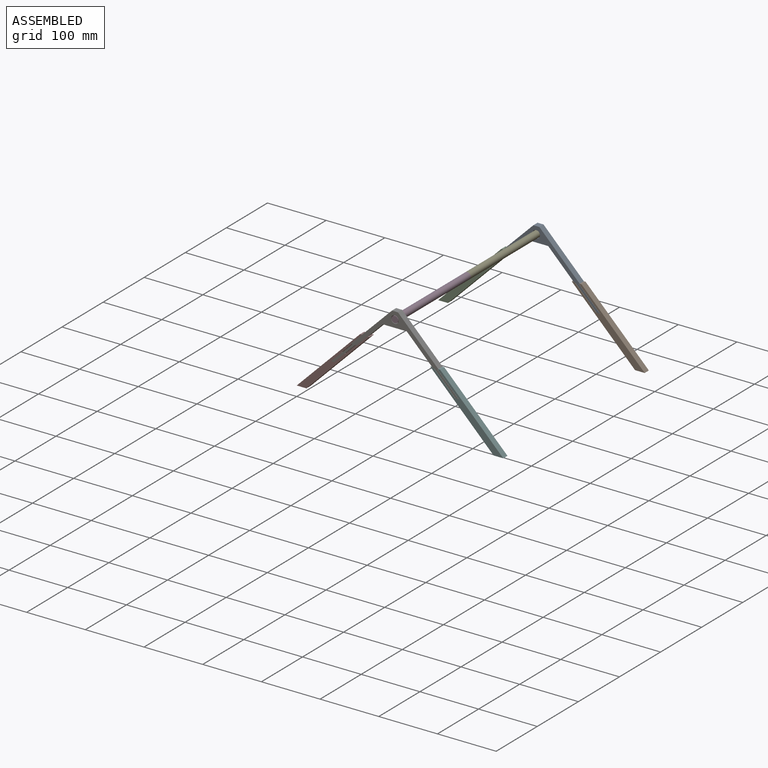
[diagram: assembled view]
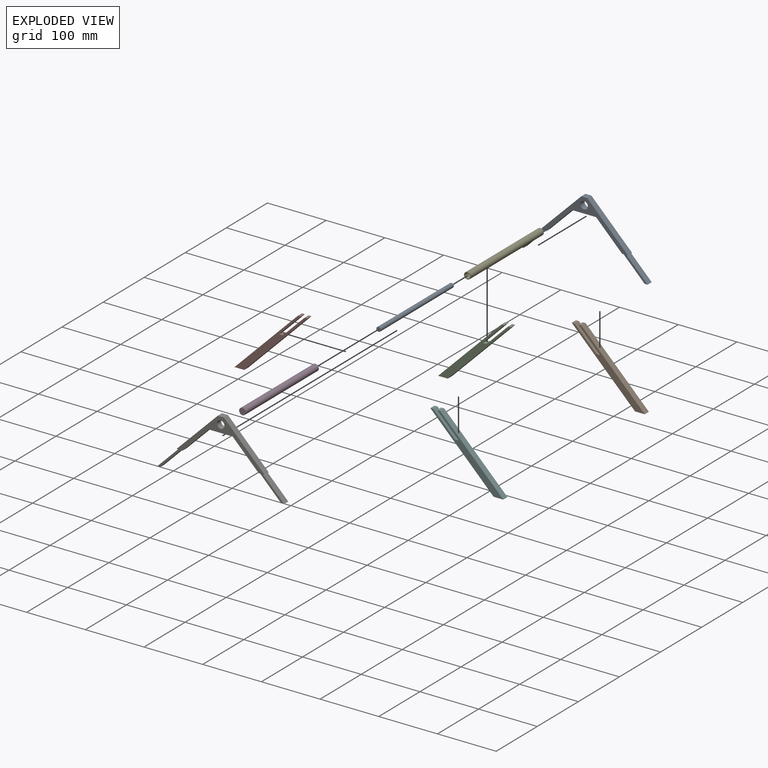
[diagram: exploded view]
GUIDED TOUR — MATED ASSEMBLY (Onshape document 0e04e7c41436a34d3ba47d7c, AutoMate assembly 0e04e7c41436a34d3ba47d7c_139859a5a8a082f7fe30dfd3_d05e98aa26e6f94b2ca812b6_default)

This assembly has 9 components, labeled P0..P8 below (a component is one placed occurrence of a part; the same part can appear more than once), held together by 6 mates. A mate is a constraint between two components; its type names the relative motion it leaves free:
  FASTENED — locks the two components together rigidly (no relative motion).
Axis/direction vectors are unit vectors and 'through' points are millimeter coordinates, both in the assembly's world frame.

MATES
  1. FASTENED "Fastened 7": P1 <-> P8, direction (0.000, 0.000, 1.000) through (-94.93, 260.28, 23.37) mm
  2. FASTENED "Fastened 4": P4 <-> P0, direction (0.000, -1.000, 0.000) through (-200.51, 176.46, 116.72) mm
  3. FASTENED "Fastened 8": P8 <-> P4, direction (0.000, 1.000, 0.000) through (-200.51, 265.36, 116.72) mm
  4. FASTENED "Fastened 2": P5 <-> P6, direction (0.000, 0.000, 1.000) through (-94.93, -83.82, 23.37) mm
  5. FASTENED "Fastened 5": P6 <-> P3, direction (0.000, 1.000, 0.000) through (-200.51, -88.90, 116.72) mm
  6. FASTENED "Fastened 3": P0 <-> P3, direction (0.000, -1.000, 0.000) through (-200.51, -1.34, 116.72) mm

ASSEMBLY ORDER
  1. P4 — the base component [order verified]
  2. P0 [order verified]
  3. P8 [order verified]
  4. P6 [order verified]
  5. P7 [order verified]
  6. P2 [order verified]
  7. P5 [order verified]
  8. P1 [order verified]
  9. P3 [order verified]
Order-tag legend:
  [order verified] — this step's position reverses a verified removal order: the component was checked to insert without passing through the ones already placed.

Of the 9 components, 9 carry the full construction recipe — the FeatureScript program that regenerates the part's solid from scratch; the rest are supplied as boundary geometry only.
Each toured component is shown spotlighted twice — in the assembled view, then in the exploded view, where a leader line traces a displaced component back to its assembled socket (saturated green if recipe-attached, orange if geometry-only; every other component desaturated gray) — followed by its recipe or geometry summary and the mates that hold it.
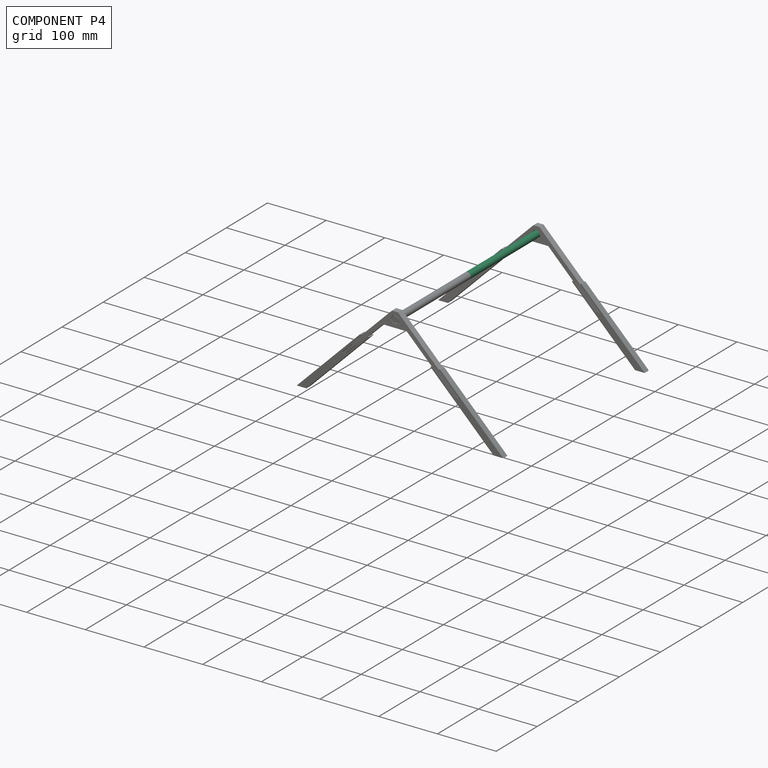
[diagram: component P4 — assembled]
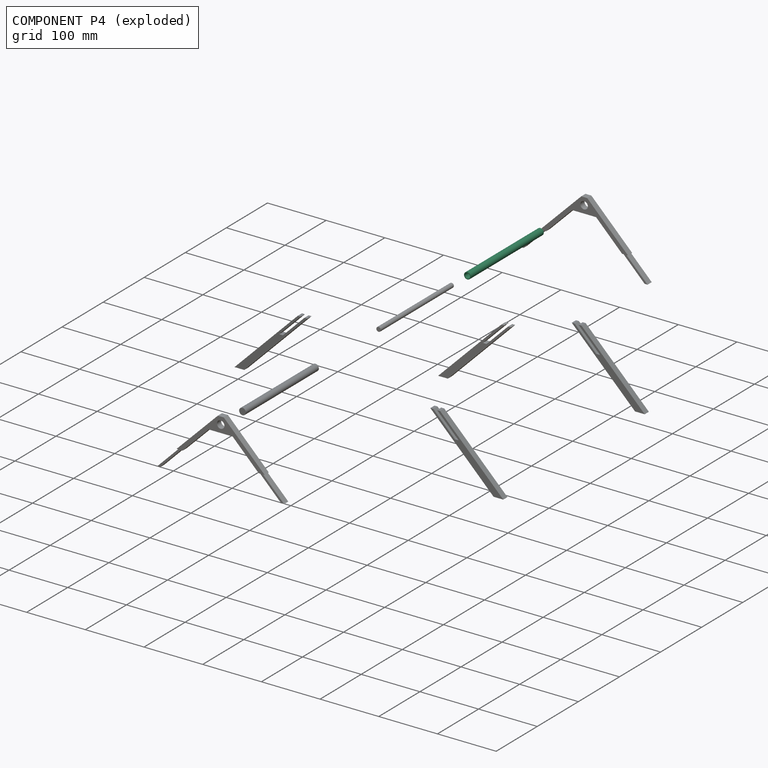
[diagram: component P4 — exploded]
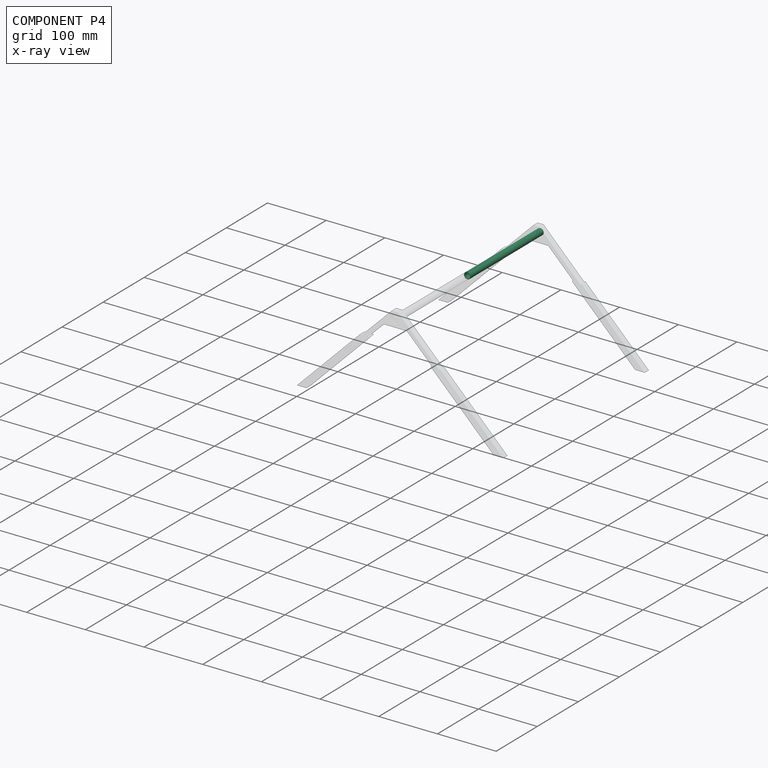
[diagram: component P4 — x-ray view]
COMPONENT P4 — same part as P3 (CADFS 00640594); its construction recipe is shown at P3.
Held by: FASTENED mate "Fastened 4" to P0; FASTENED mate "Fastened 8" to P8.
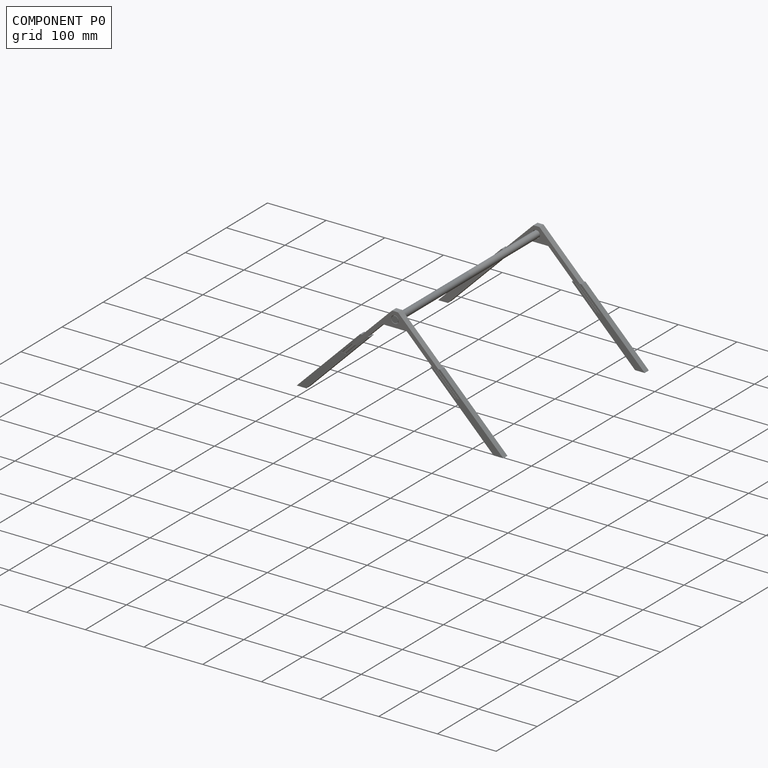
[diagram: component P0 — assembled]
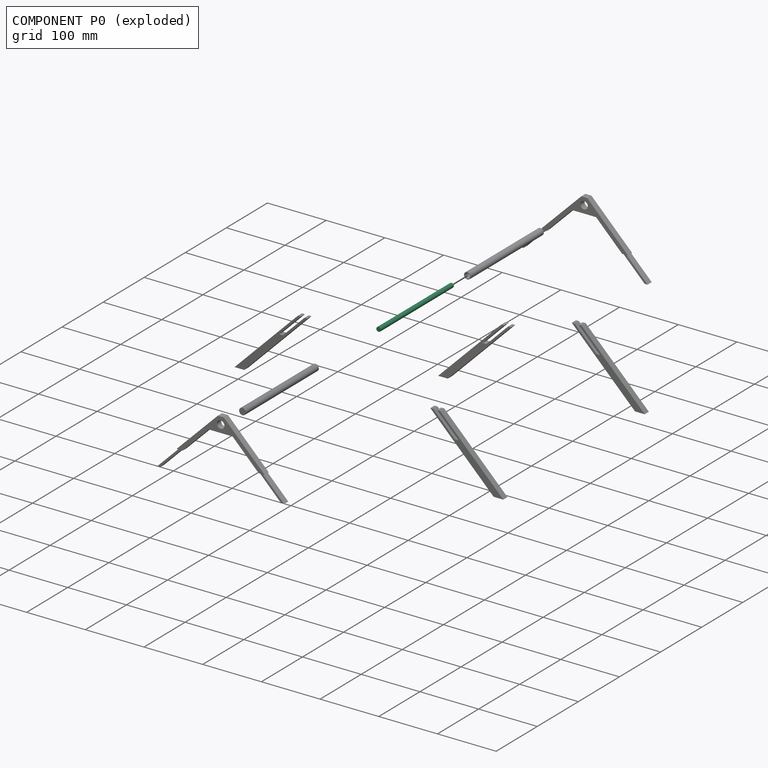
[diagram: component P0 — exploded]
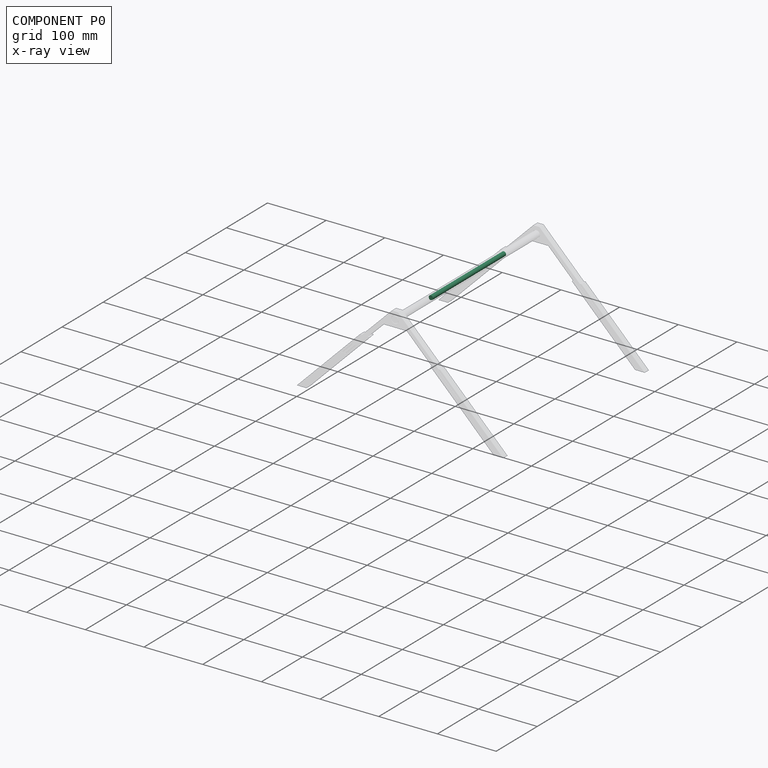
[diagram: component P0 — x-ray view]
COMPONENT P0 — recipe-attached (CADFS 00640595, mesh-verified: the recipe's output STEP matches this component's geometry to below the mesh-comparison resolution (tessellation chordal tolerance ~0.267 mm)).
Held by: FASTENED mate "Fastened 4" to P4; FASTENED mate "Fastened 3" to P3.
Construction recipe (FeatureScript — the CAD program that rebuilds this solid; sketch coordinates are in the units given by the * unit suffixes, e.g. mm):

FeatureScript 1511;
import(path : "onshape/std/geometry.fs", version : "1511.0");
import(path : "onshape/std/common.fs", version : "1511.0");
const mm = millimeter;
const VERTEX = EntityType.VERTEX;
const EDGE = EntityType.EDGE;
const FACE = EntityType.FACE;
const BODY = EntityType.BODY;
function v(x, y){return vector(x, y);}
function OD(order){return orderDisambiguation(order);}
function OSD(set){return originalSetDisambiguation(set);}
function TD(topology){return topologyDisambiguation(topology);}
function TDD(query){return trueDependencyDisambiguation(query);}
function sQuery(a, b, c) {return sketchEntityQuery(a, b, c);}

annotation { "Feature Type Name" : "Feature", "Feature Type Description" : "" }
export const myFeature = defineFeature(function(context is Context, id is Id, definition is map)
    precondition{}
    {
        {
            var Q0;
            Q0=qCreatedBy(makeId("Front.planeOp"),FACE);
            var sketch = newSketch(context, id + "F0", { "sketchPlane" : qUnion([Q0])});
            skCircle(sketch, "E0", {"center": v(0, 0) * mm, "radius": 3.81 * mm});
            skSolve(sketch);
        }
        {
            var Q0;
            Q0=makeQuery(id+"F0.imprint","IMPRINT",FACE,{"disambiguationData":[TD([[makeQuery(id+"F0.imprint","IMPRINT",EDGE,{"derivedFrom":sQuery(id+"F0.wireOp",EDGE,"E0")}),1.0]])]});
            extrude(context, id + "F1", {"entities" : qUnion([Q0]), "depth" : 177.8 * mm, "offsetDistance" : 25.4 * mm});
        }
    });
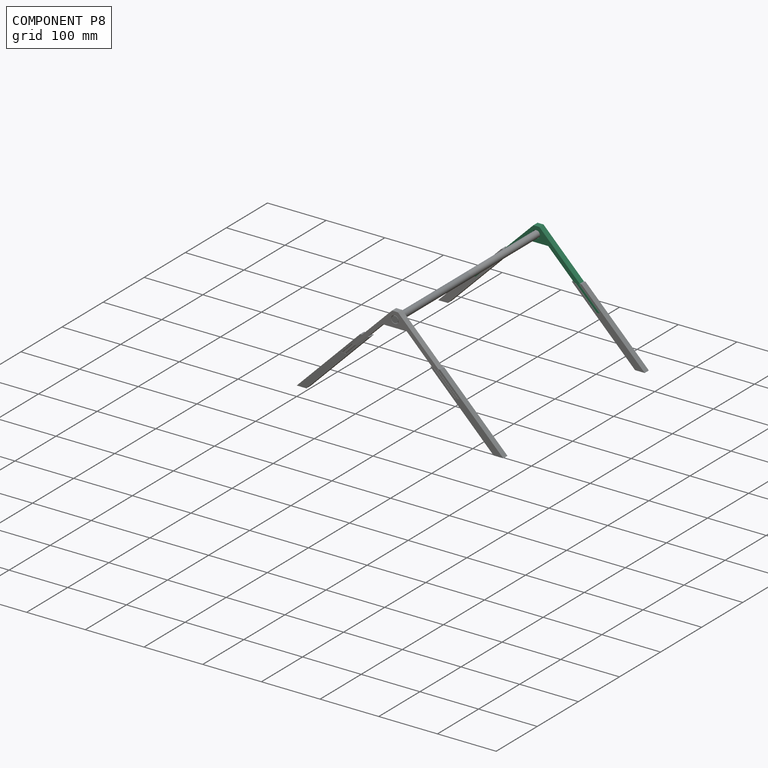
[diagram: component P8 — assembled]
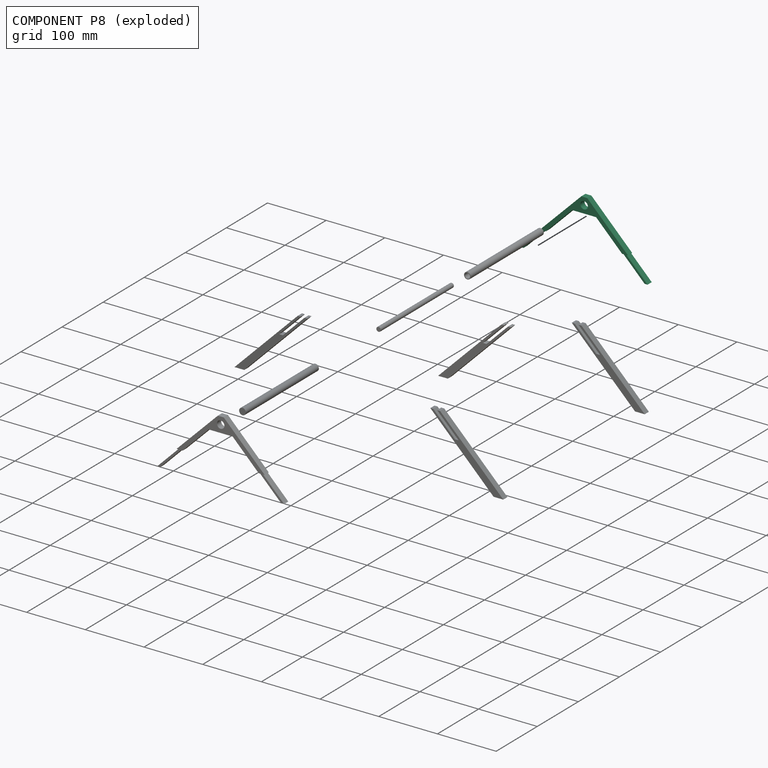
[diagram: component P8 — exploded]
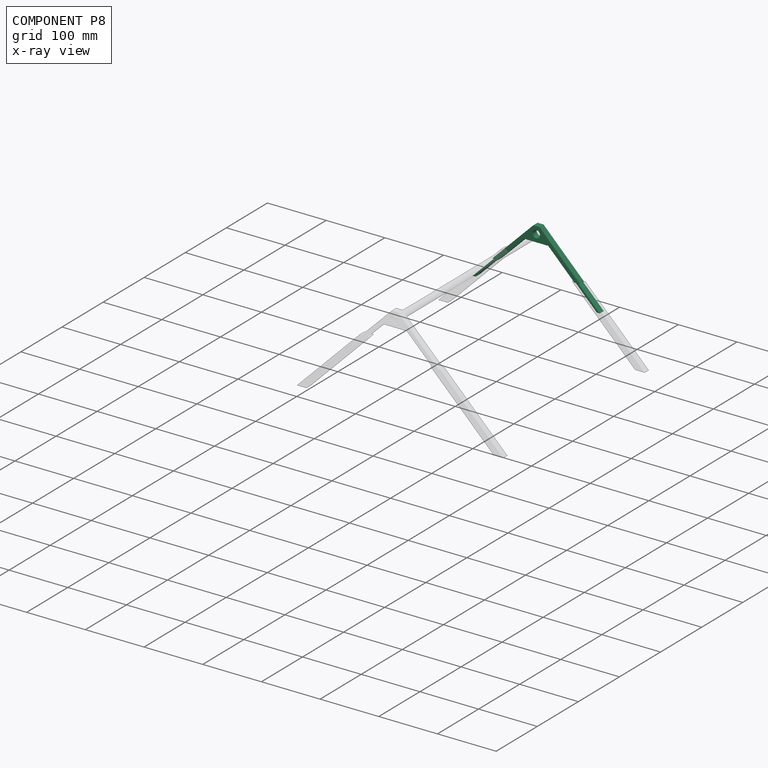
[diagram: component P8 — x-ray view]
COMPONENT P8 — same part as P6 (CADFS 00640593); its construction recipe is shown at P6.
Held by: FASTENED mate "Fastened 7" to P1; FASTENED mate "Fastened 8" to P4.
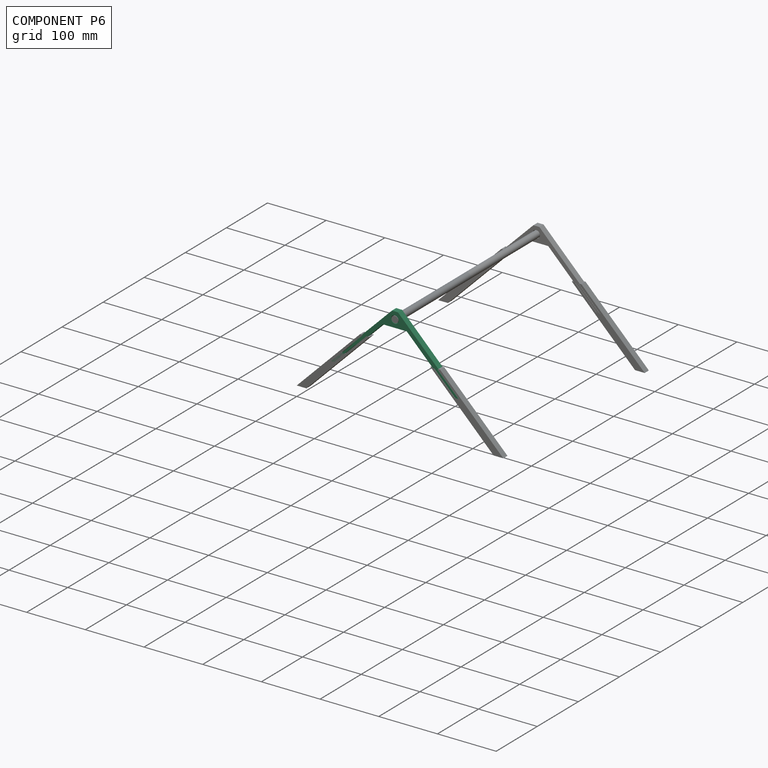
[diagram: component P6 — assembled]
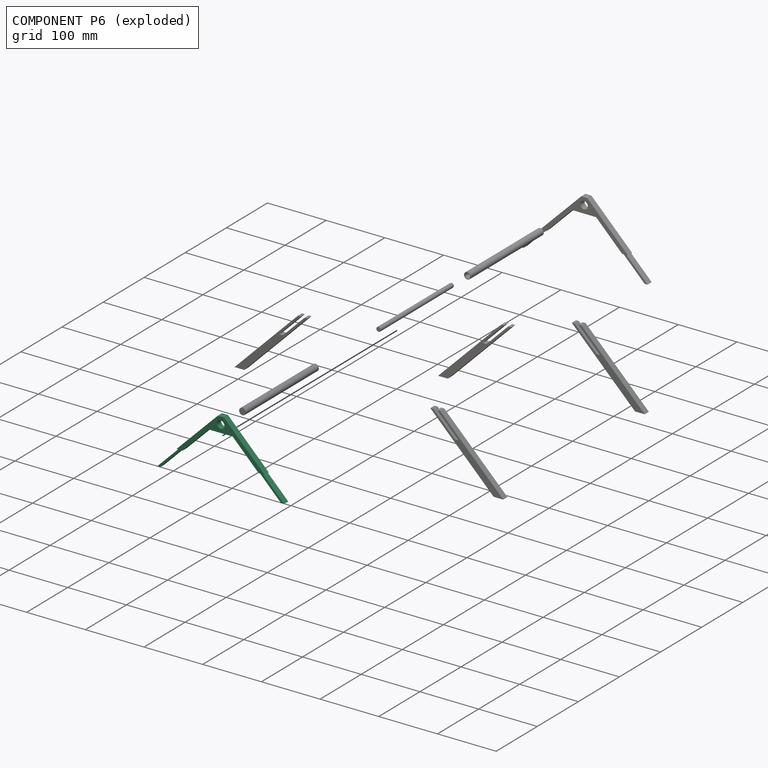
[diagram: component P6 — exploded]
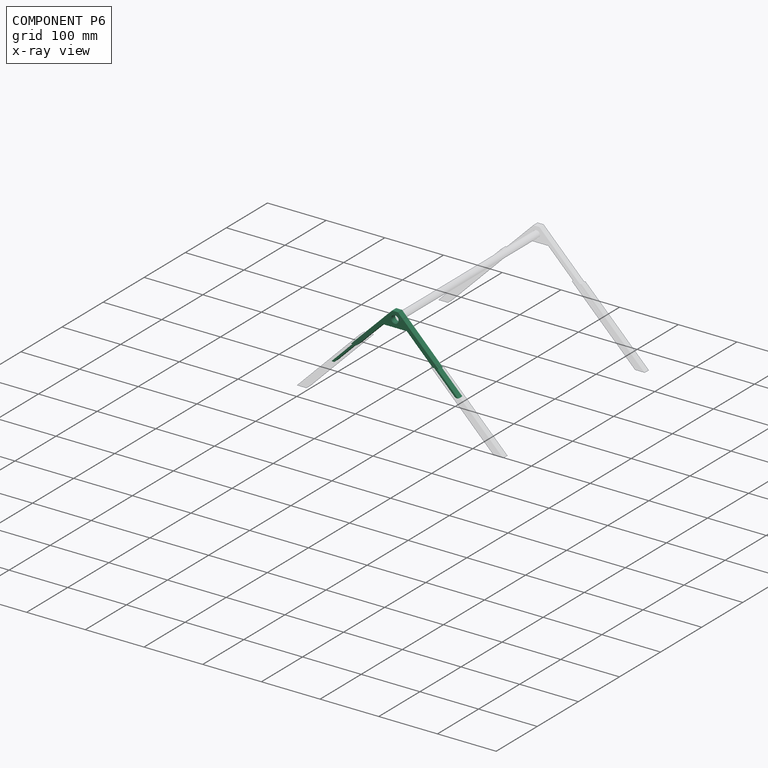
[diagram: component P6 — x-ray view]
COMPONENT P6 — recipe-attached (CADFS 00640593, mesh-verified: the recipe's output STEP matches this component's geometry to below the mesh-comparison resolution (tessellation chordal tolerance ~0.362 mm)).
Held by: FASTENED mate "Fastened 2" to P5; FASTENED mate "Fastened 5" to P3.
Construction recipe (FeatureScript — the CAD program that rebuilds this solid; sketch coordinates are in the units given by the * unit suffixes, e.g. mm):

FeatureScript 1511;
import(path : "onshape/std/geometry.fs", version : "1511.0");
import(path : "onshape/std/common.fs", version : "1511.0");
const mm = millimeter;
const VERTEX = EntityType.VERTEX;
const EDGE = EntityType.EDGE;
const FACE = EntityType.FACE;
const BODY = EntityType.BODY;
function v(x, y){return vector(x, y);}
function OD(order){return orderDisambiguation(order);}
function OSD(set){return originalSetDisambiguation(set);}
function TD(topology){return topologyDisambiguation(topology);}
function TDD(query){return trueDependencyDisambiguation(query);}
function sQuery(a, b, c) {return sketchEntityQuery(a, b, c);}

annotation { "Feature Type Name" : "Feature", "Feature Type Description" : "" }
export const myFeature = defineFeature(function(context is Context, id is Id, definition is map)
    precondition{}
    {
        {
            var Q0;
            Q0=qCreatedBy(makeId("Front.planeOp"),FACE);
            var sketch = newSketch(context, id + "F0", { "sketchPlane" : qUnion([Q0])});
            skPoint(sketch, "E0", {"position": v(-75.1, 1.33) * mm});
            skLineSegment(sketch, "E1", {"start": v(-75.1, 1.33) * mm, "end": v(-4.87, 71.2) * mm});
            skLineSegment(sketch, "E2", {"start": v(-4.87, 71.2) * mm, "end": v(5.29, 71.2) * mm});
            skLineSegment(sketch, "E3", {"start": v(5.29, 71.2) * mm, "end": v(74.82, 1.33) * mm});
            skCircle(sketch, "E4", {"center": v(0, 58.68) * mm, "radius": 6.35 * mm});
            skLineSegment(sketch, "E5", {"start": v(-4.94, 45.87) * mm, "end": v(5.29, 45.87) * mm});
            skLineSegment(sketch, "E6", {"start": v(-64.93, 1.33) * mm, "end": v(-20.18, 45.87) * mm});
            skLineSegment(sketch, "E7", {"start": v(-20.18, 45.87) * mm, "end": v(-4.94, 45.87) * mm});
            skLineSegment(sketch, "E8", {"start": v(64.66, 1.33) * mm, "end": v(20.34, 45.87) * mm});
            skLineSegment(sketch, "E9", {"start": v(20.34, 45.87) * mm, "end": v(5.29, 45.87) * mm});
            skLineSegment(sketch, "E10", {"start": v(64.66, 1.33) * mm, "end": v(67.2, 1.33) * mm});
            skLineSegment(sketch, "E11", {"start": v(74.82, 1.33) * mm, "end": v(72.27, 1.32) * mm});
            skLineSegment(sketch, "E12", {"start": v(103.04, -34.68) * mm, "end": v(67.2, 1.33) * mm});
            skLineSegment(sketch, "E13", {"start": v(72.27, 1.32) * mm, "end": v(108.12, -34.68) * mm});
            skLineSegment(sketch, "E14", {"start": v(103.04, -34.68) * mm, "end": v(108.12, -34.68) * mm});
            skLineSegment(sketch, "E15", {"start": v(-67.47, 1.33) * mm, "end": v(-64.93, 1.33) * mm});
            skLineSegment(sketch, "E16", {"start": v(-72.55, 1.33) * mm, "end": v(-75.1, 1.33) * mm});
            skLineSegment(sketch, "E17", {"start": v(-72.55, 1.33) * mm, "end": v(-108.47, -34.6) * mm});
            skLineSegment(sketch, "E18", {"start": v(-67.47, 1.33) * mm, "end": v(-103.4, -34.6) * mm});
            skLineSegment(sketch, "E19", {"start": v(-108.47, -34.6) * mm, "end": v(-103.4, -34.6) * mm});
            skSolve(sketch);
        }
        {
            var Q0;
            {var subQ2=sQuery(id+"F0.wireOp",EDGE,"E1");Q0=makeQuery(id+"F0.imprint","IMPRINT",FACE,{"disambiguationData":[TD([[makeQuery(id+"F0.imprint","IMPRINT",EDGE,{"derivedFrom":subQ2}),-1.0]])]});}
            var Q1;
            Q1=makeQuery(id+"F0.imprint","IMPRINT",FACE,{"disambiguationData":[TD([[makeQuery(id+"F0.imprint","IMPRINT",EDGE,{"derivedFrom":sQuery(id+"F0.wireOp",EDGE,"wpYTy7sd-HpSi-w1Er-A0oa-9MDZLQ8jqnZ0")}),1.0]])]});
            var Q2;
            Q2=makeQuery(id+"F0.imprint","IMPRINT",FACE,{"disambiguationData":[TD([[makeQuery(id+"F0.imprint","IMPRINT",EDGE,{"derivedFrom":sQuery(id+"F0.wireOp",EDGE,"U3wxSxf6-Yrtl-wJfo-I3fQ-b3RtTAKliQwI")}),1.0]])]});
            extrude(context, id + "F1", {"entities" : qUnion([Q0, Q1, Q2]), "depth" : 10.16 * mm, "offsetDistance" : 25.4 * mm});
        }
    });
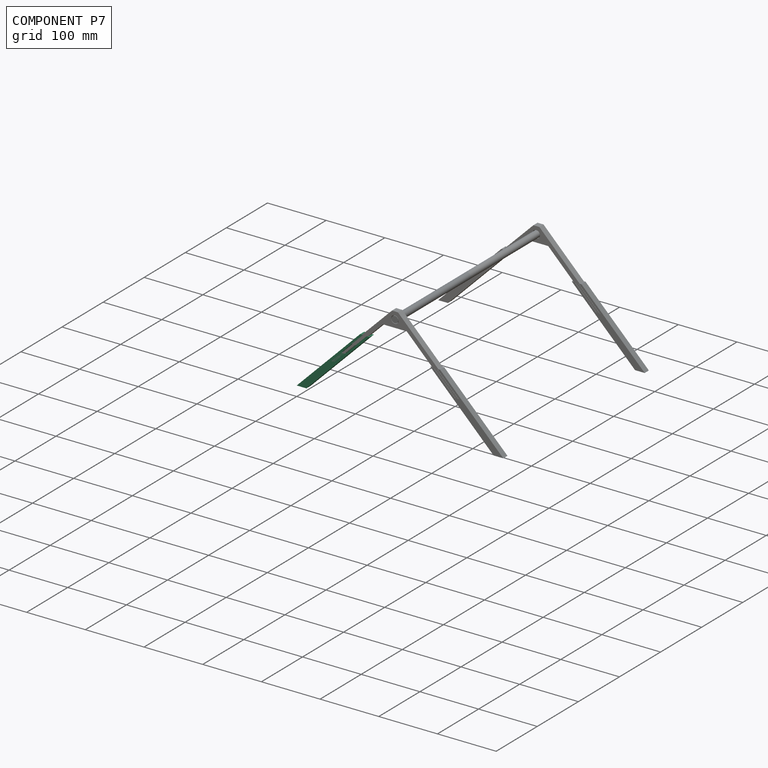
[diagram: component P7 — assembled]
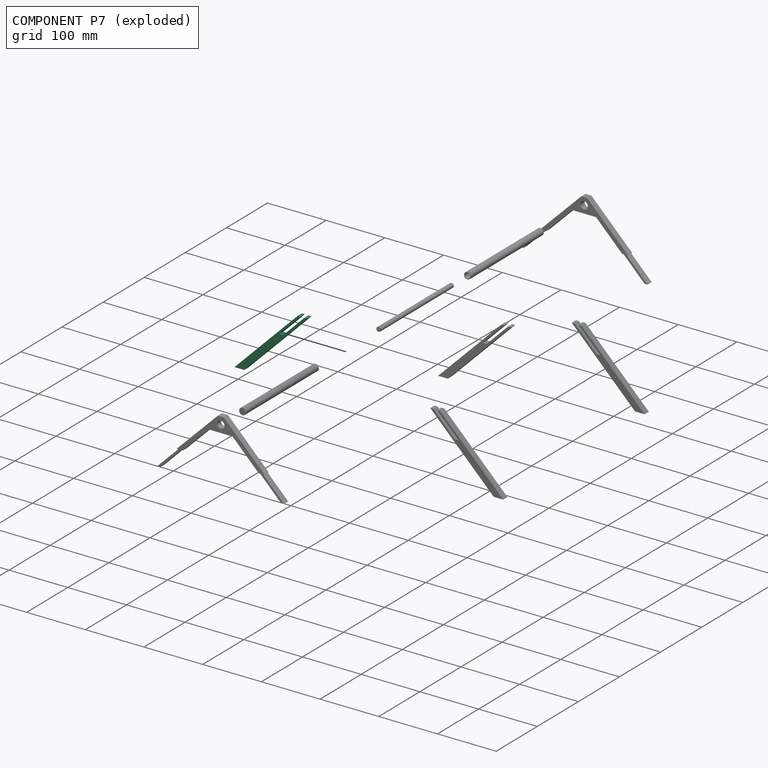
[diagram: component P7 — exploded]
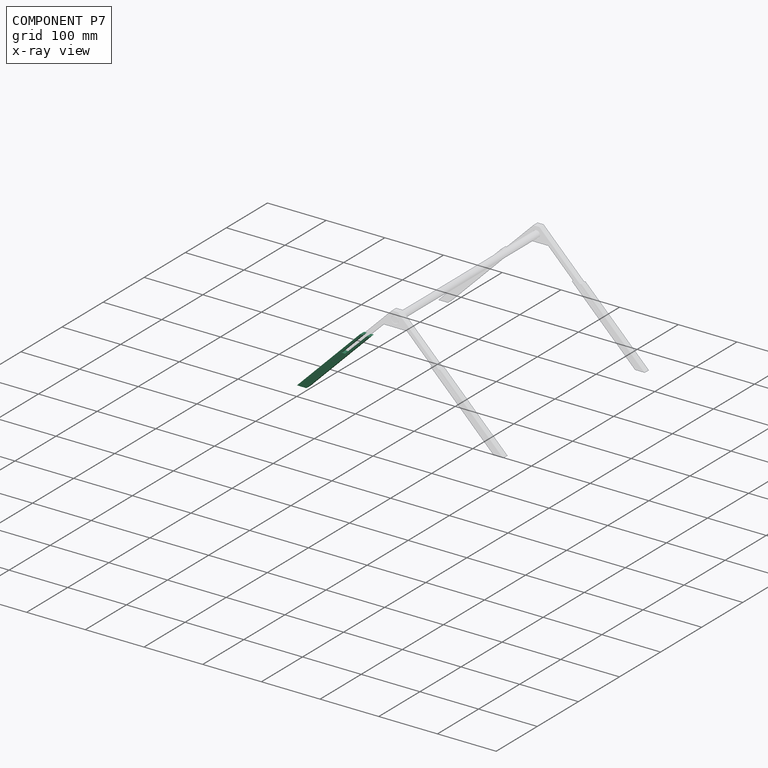
[diagram: component P7 — x-ray view]
COMPONENT P7 — same part as P1 (CADFS 00640592); its construction recipe is shown at P1.
Held by: no mates (free).
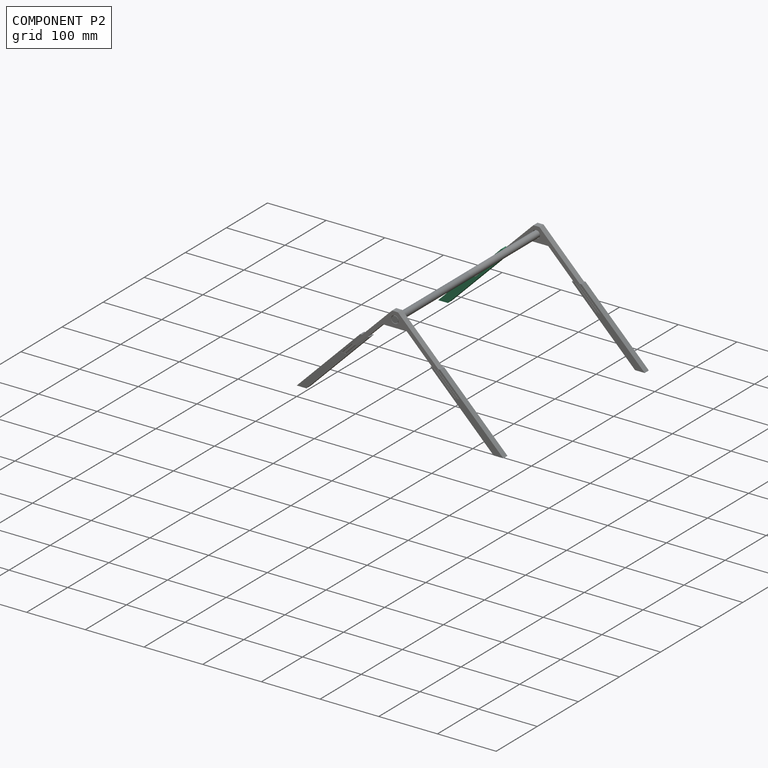
[diagram: component P2 — assembled]
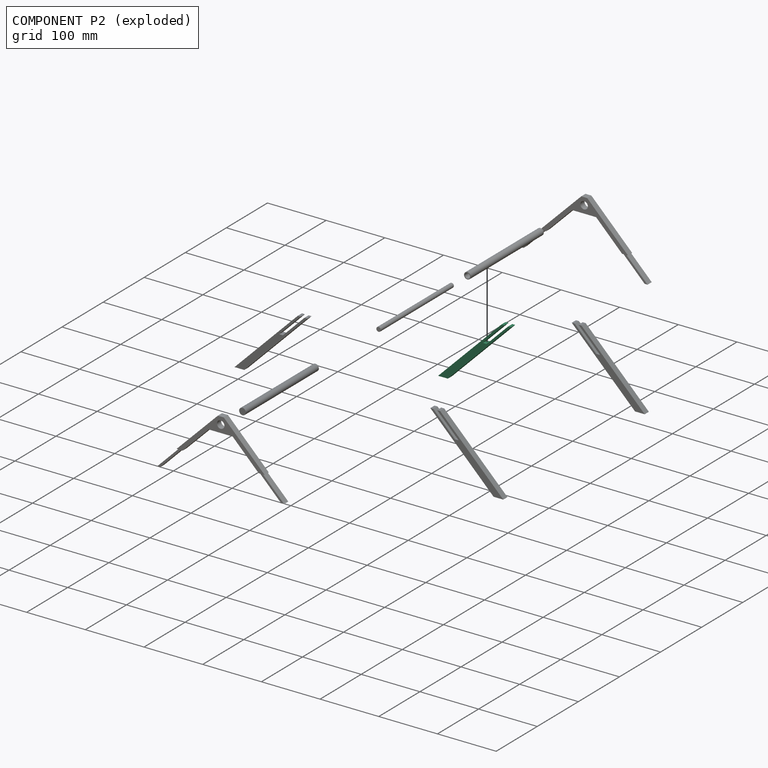
[diagram: component P2 — exploded]
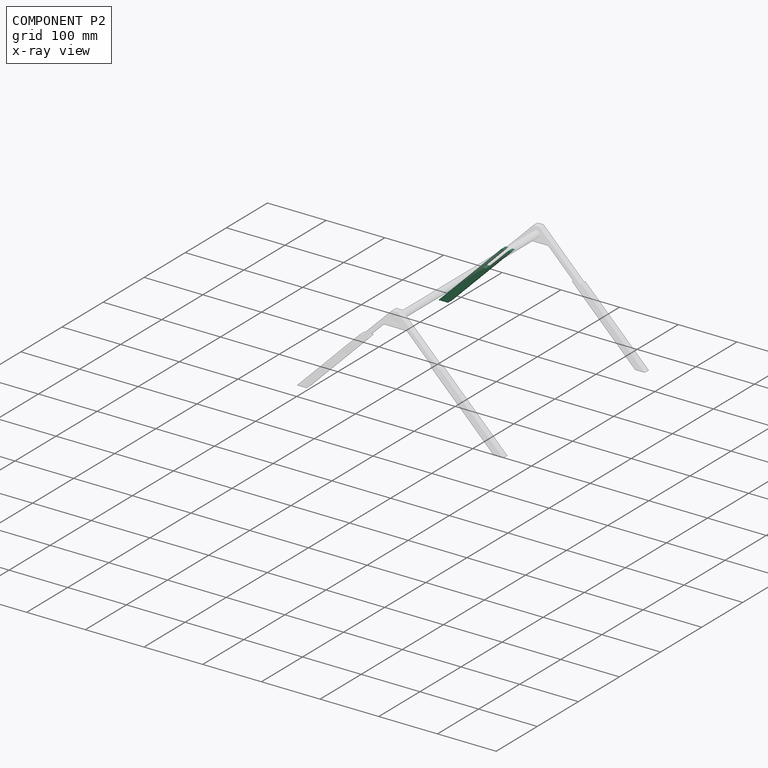
[diagram: component P2 — x-ray view]
COMPONENT P2 — same part as P1 (CADFS 00640592); its construction recipe is shown at P1.
Held by: no mates (free).
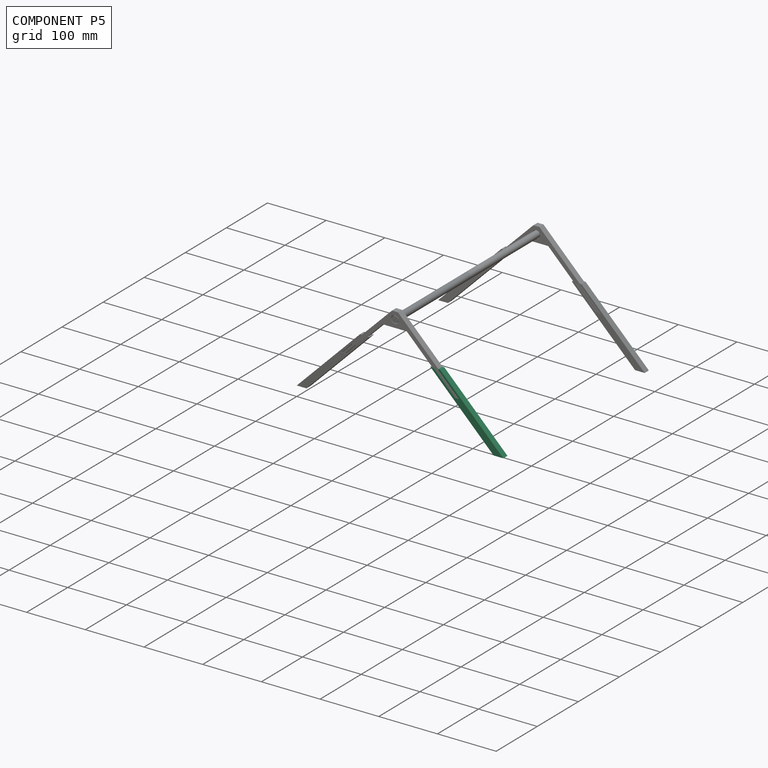
[diagram: component P5 — assembled]
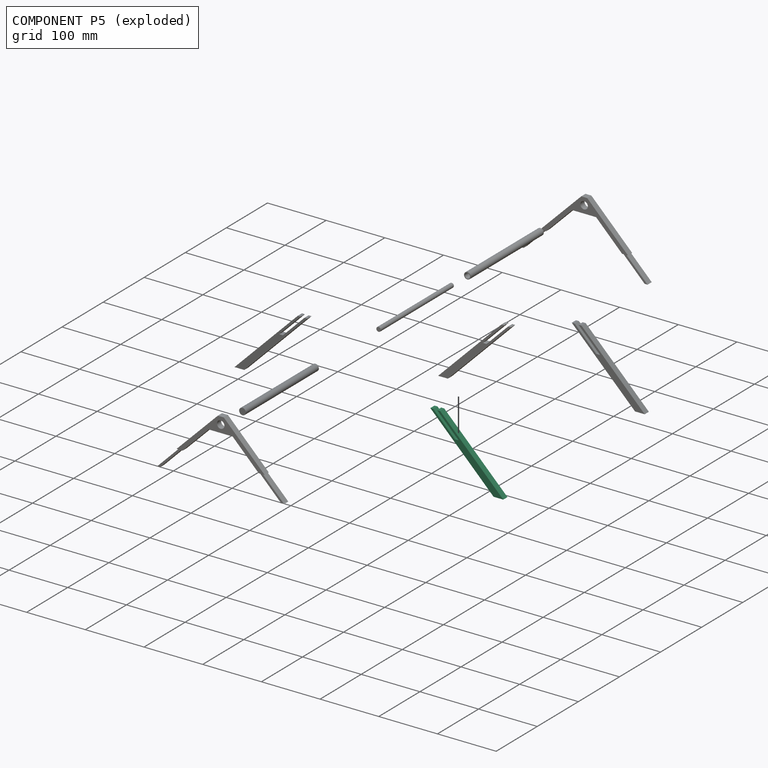
[diagram: component P5 — exploded]
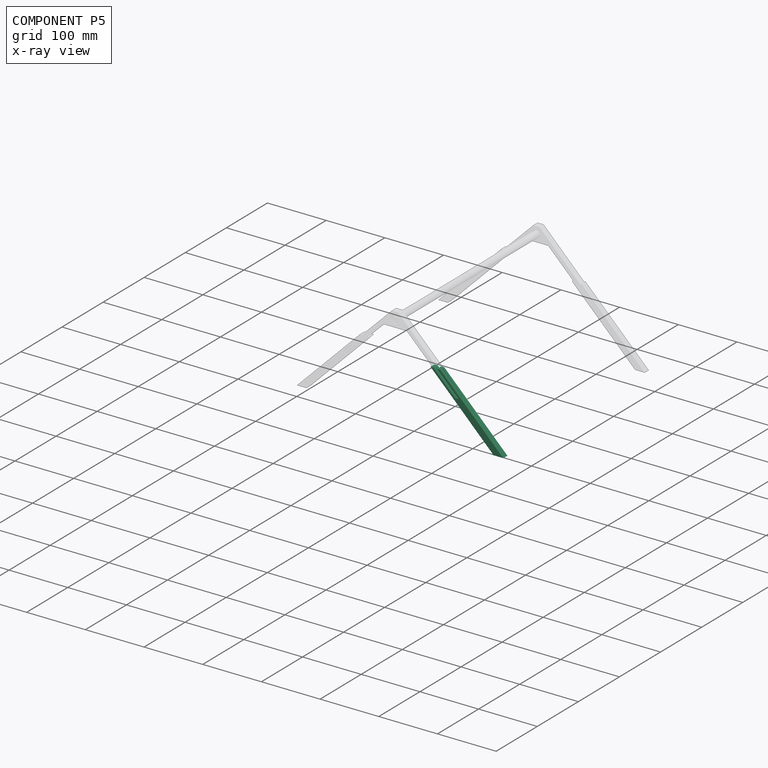
[diagram: component P5 — x-ray view]
COMPONENT P5 — same part as P1 (CADFS 00640592); its construction recipe is shown at P1.
Held by: FASTENED mate "Fastened 2" to P6.
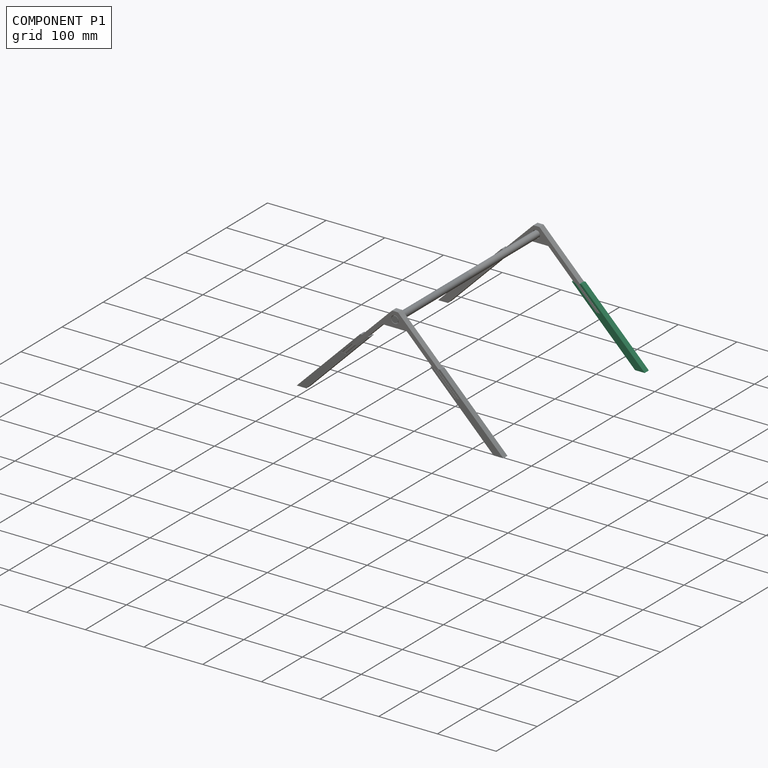
[diagram: component P1 — assembled]
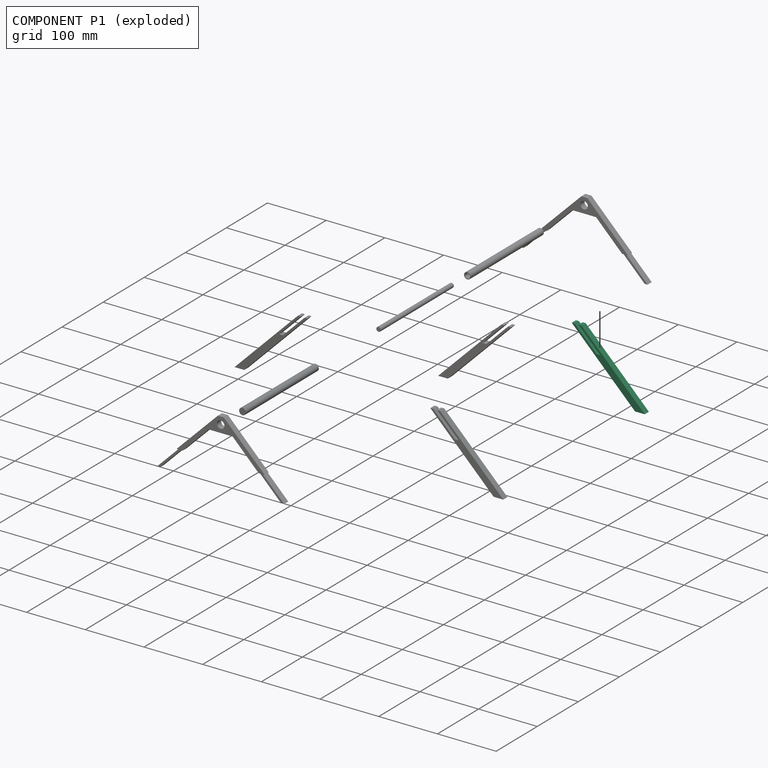
[diagram: component P1 — exploded]
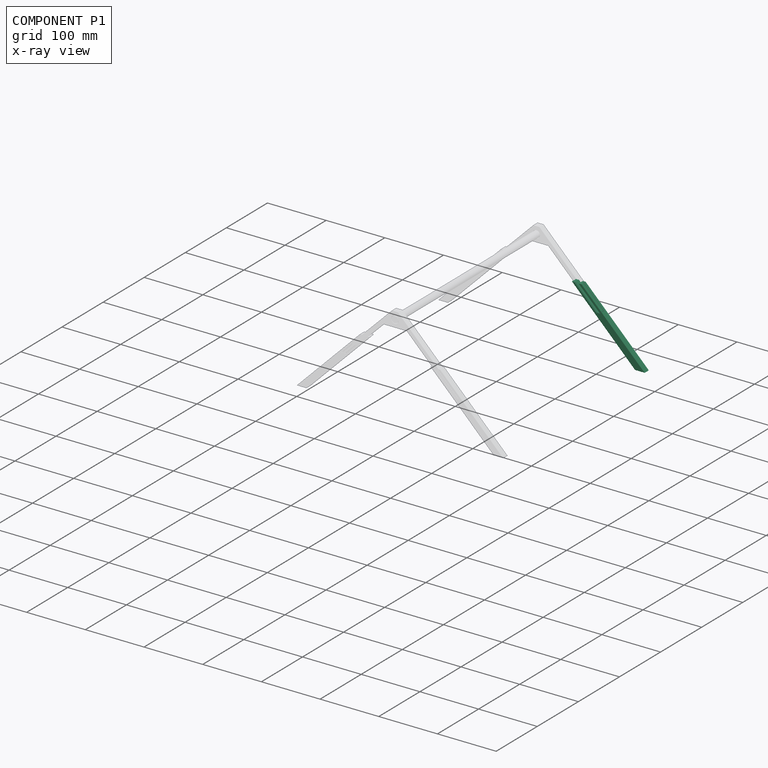
[diagram: component P1 — x-ray view]
COMPONENT P1 — recipe-attached (CADFS 00640592, mesh-verified: the recipe's output STEP matches this component's geometry to below the mesh-comparison resolution (tessellation chordal tolerance ~0.247 mm)).
Held by: FASTENED mate "Fastened 7" to P8.
Construction recipe (FeatureScript — the CAD program that rebuilds this solid; sketch coordinates are in the units given by the * unit suffixes, e.g. mm):

FeatureScript 1511;
import(path : "onshape/std/geometry.fs", version : "1511.0");
import(path : "onshape/std/common.fs", version : "1511.0");
const mm = millimeter;
const VERTEX = EntityType.VERTEX;
const EDGE = EntityType.EDGE;
const FACE = EntityType.FACE;
const BODY = EntityType.BODY;
function v(x, y){return vector(x, y);}
function OD(order){return orderDisambiguation(order);}
function OSD(set){return originalSetDisambiguation(set);}
function TD(topology){return topologyDisambiguation(topology);}
function TDD(query){return trueDependencyDisambiguation(query);}
function sQuery(a, b, c) {return sketchEntityQuery(a, b, c);}

annotation { "Feature Type Name" : "Feature", "Feature Type Description" : "" }
export const myFeature = defineFeature(function(context is Context, id is Id, definition is map)
    precondition{}
    {
        {
            var Q0;
            Q0=qCreatedBy(makeId("Front.planeOp"),FACE);
            var sketch = newSketch(context, id + "F0", { "sketchPlane" : qUnion([Q0])});
            skLineSegment(sketch, "E0", {"start": v(0, 0) * mm, "end": v(16.51, 0) * mm});
            skLineSegment(sketch, "E1", {"start": v(0, 0) * mm, "end": v(107.76, 107.76) * mm});
            skLineSegment(sketch, "E2", {"start": v(107.76, 107.76) * mm, "end": v(112.84, 107.76) * mm});
            skLineSegment(sketch, "E3", {"start": v(112.84, 107.76) * mm, "end": v(76.02, 70.94) * mm});
            skLineSegment(sketch, "E4", {"start": v(76.02, 70.94) * mm, "end": v(82.37, 70.94) * mm});
            skLineSegment(sketch, "E5", {"start": v(82.37, 70.94) * mm, "end": v(119.2, 107.76) * mm});
            skLineSegment(sketch, "E6", {"start": v(119.2, 107.76) * mm, "end": v(124.27, 107.76) * mm});
            skLineSegment(sketch, "E7", {"start": v(124.27, 107.76) * mm, "end": v(16.51, 0) * mm});
            skSolve(sketch);
        }
        {
            var Q0;
            Q0=makeQuery(id+"F0.imprint","IMPRINT",FACE,{"disambiguationData":[TD([[makeQuery(id+"F0.imprint","IMPRINT",EDGE,{"derivedFrom":sQuery(id+"F0.wireOp",EDGE,"E0")}),1.0]])]});
            extrude(context, id + "F1", {"entities" : qUnion([Q0]), "depth" : 10.16 * mm, "offsetDistance" : 25.4 * mm});
        }
    });
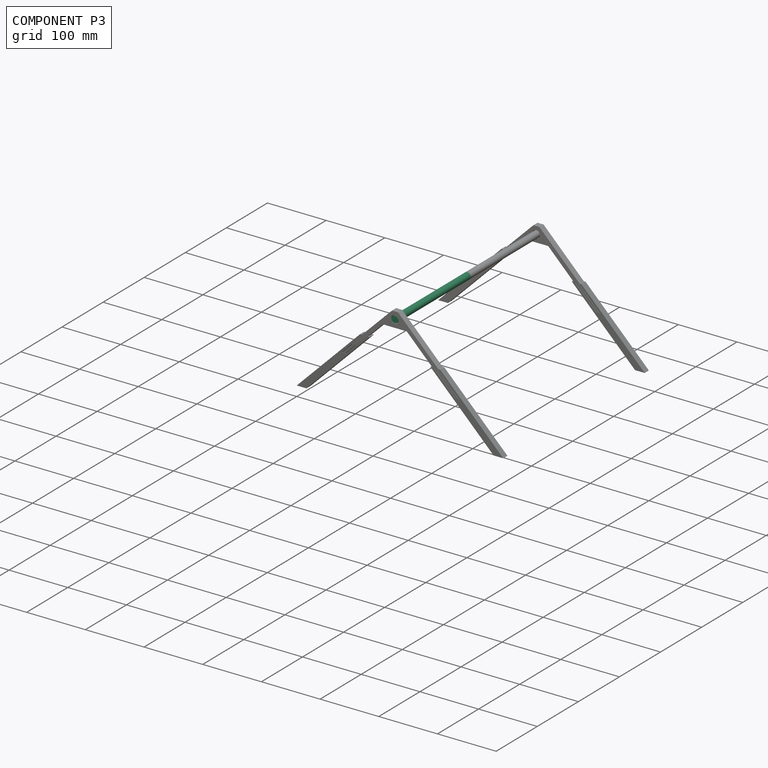
[diagram: component P3 — assembled]
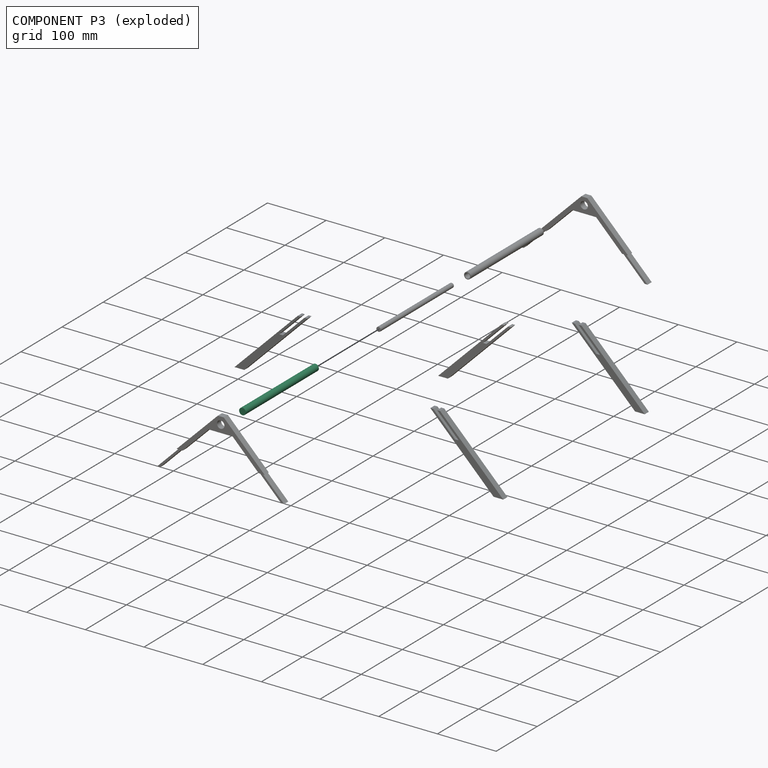
[diagram: component P3 — exploded]
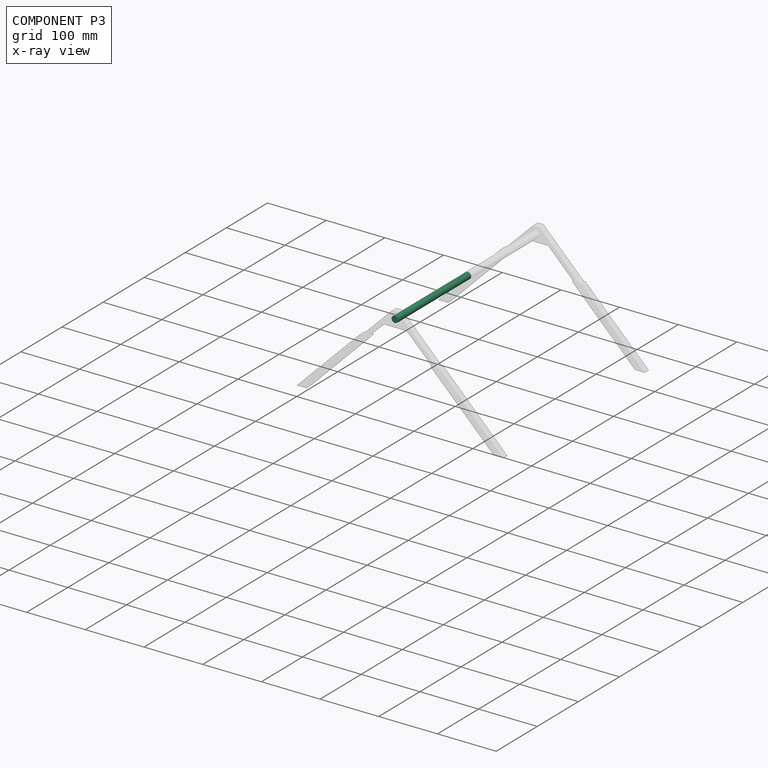
[diagram: component P3 — x-ray view]
COMPONENT P3 — recipe-attached (CADFS 00640594, mesh-verified: the recipe's output STEP matches this component's geometry to below the mesh-comparison resolution (tessellation chordal tolerance ~0.268 mm)).
Held by: FASTENED mate "Fastened 5" to P6; FASTENED mate "Fastened 3" to P0.
Construction recipe (FeatureScript — the CAD program that rebuilds this solid; sketch coordinates are in the units given by the * unit suffixes, e.g. mm):

FeatureScript 1511;
import(path : "onshape/std/geometry.fs", version : "1511.0");
import(path : "onshape/std/common.fs", version : "1511.0");
const mm = millimeter;
const VERTEX = EntityType.VERTEX;
const EDGE = EntityType.EDGE;
const FACE = EntityType.FACE;
const BODY = EntityType.BODY;
function v(x, y){return vector(x, y);}
function OD(order){return orderDisambiguation(order);}
function OSD(set){return originalSetDisambiguation(set);}
function TD(topology){return topologyDisambiguation(topology);}
function TDD(query){return trueDependencyDisambiguation(query);}
function sQuery(a, b, c) {return sketchEntityQuery(a, b, c);}

annotation { "Feature Type Name" : "Feature", "Feature Type Description" : "" }
export const myFeature = defineFeature(function(context is Context, id is Id, definition is map)
    precondition{}
    {
        {
            var Q0;
            Q0=qCreatedBy(makeId("Front.planeOp"),FACE);
            var sketch = newSketch(context, id + "F0", { "sketchPlane" : qUnion([Q0])});
            skCircle(sketch, "E0", {"center": v(0, 0) * mm, "radius": 5.72 * mm});
            skSolve(sketch);
        }
        {
            var Q0;
            Q0=makeQuery(id+"F0.imprint","IMPRINT",FACE,{"disambiguationData":[TD([[makeQuery(id+"F0.imprint","IMPRINT",EDGE,{"derivedFrom":sQuery(id+"F0.wireOp",EDGE,"E0")}),1.0]])]});
            extrude(context, id + "F1", {"entities" : qUnion([Q0]), "depth" : 177.8 * mm, "offsetDistance" : 25.4 * mm});
        }
        {
            var Q0;
            Q0=makeQuery(id+"F1.opExtrude","CAP_FACE",FACE,{"disambiguationData":[OSD([sQuery(id+"F0.wireOp",EDGE,"E0")])],"isStart":true});
            var sketch = newSketch(context, id + "F2", { "sketchPlane" : qUnion([Q0])});
            skPoint(sketch, "E1", {"position": v(0, 0) * mm});
            skSolve(sketch);
        }
        {
            var Q0;
            Q0=sQuery(id+"F2.wireOp",VERTEX,"E1");
            var Q1;
            Q1=makeQuery(id+"F1.opExtrude","SWEPT_BODY",BODY,{"disambiguationData":[OSD([sQuery(id+"F0.wireOp",EDGE,"E0")])]});
            hole(context, id + "F3", {"style" : HoleStyle.SIMPLE, "endStyle" : HoleEndStyle.BLIND, "holeDiameter" : 8.9 * mm, "majorDiameter" : 6.35 * mm, "holeDepth" : 88.9 * mm, "isTappedThrough" : true, "tappedDepth" : 12.7 * mm, "tapClearance" : 3, "locations" : qUnion([Q0]), "scope" : qUnion([Q1])});
        }
    });
PROVENANCE & LICENSES
Assembly (occurrences, transforms, mates, per-part STEP geometry): AutoMate dataset, Zenodo record 7776208, CC0.
Construction recipes: CADFS (HuggingFace VladPyatov/CADFS, CC-BY-4.0, layered over the ABC dataset), FeatureScript reconstruction programs keyed by ABC model id.
Join: ABC meta listings map ABC model id -> Onshape documentId; within a shared document, parts are matched by geometric signature (bounding-box dims + volume at 0.1% relative tolerance, exact B-rep face/solid counts).
Verification: 9 of this assembly's 9 components carry a recipe attachment, and every attachment is mesh-verified: the CADFS STEP and the AutoMate member STEP were compared as meshes in their shared local frame (symmetric sampled-point-to-mesh distance); worst across the 9 attachments: below the mesh-comparison resolution (tessellation chordal tolerance ~0.362 mm) on a 241 mm part.
Renders: orthographic iso camera (az 35 / el 25); the floor grid conveys scale (grid pitch printed in each image; no ruler). In the exploded view each component is displaced by its stored offset vector: the offsets alone carry the explosion direction (mate normal/axis signs are not orientation cues and do not encode it), and separation distances are assigned per mate-chain, not proportionally to assembly-order depth.
